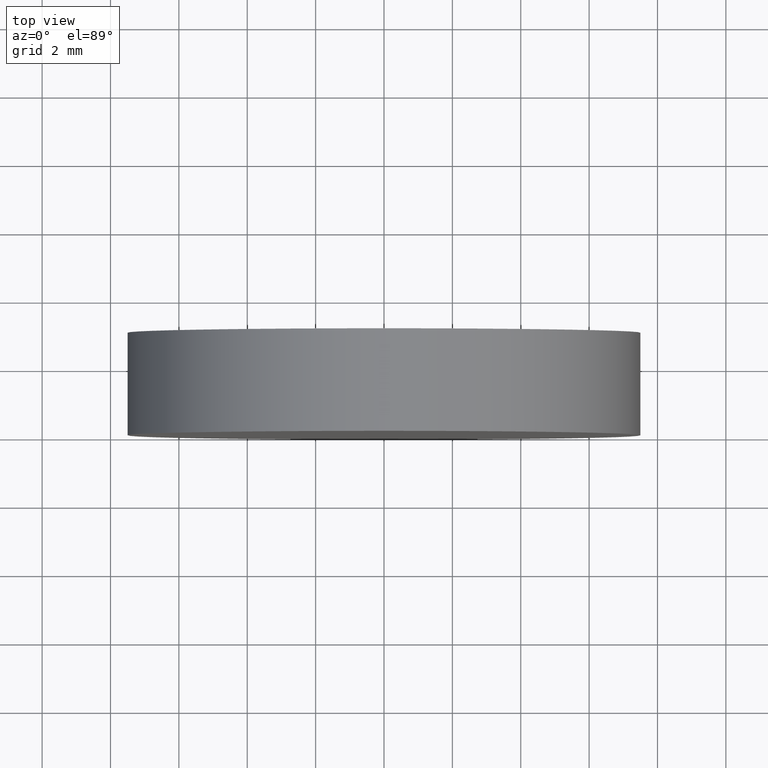
[diagram: clean part render]
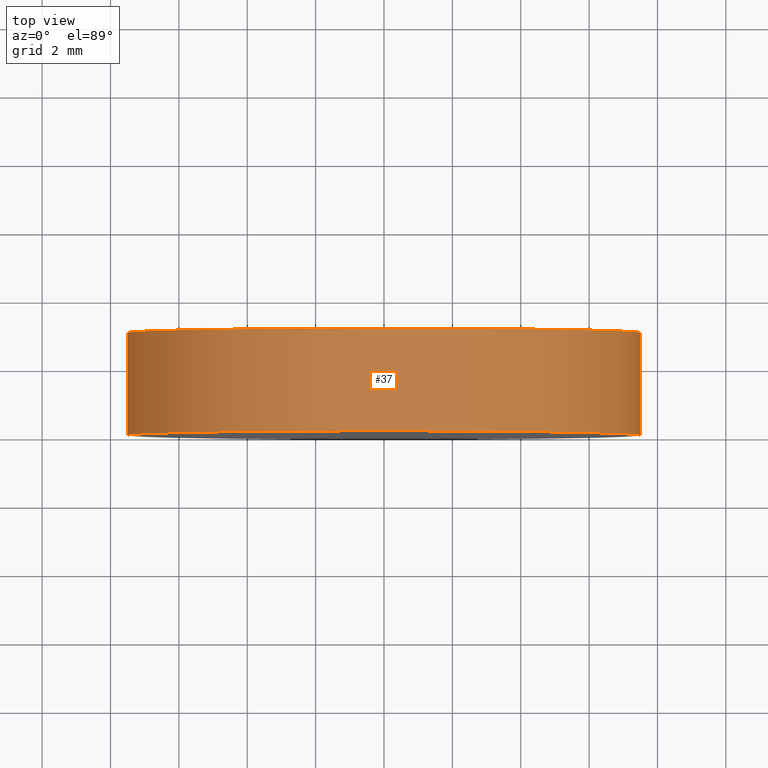
[diagram: same view with one face highlighted and labeled with its STEP entity id]
A machine part, top view. The second image highlights one B-rep face of the part: STEP entity #37.
In plain terms, the highlighted cylindrical surface (bore or boss wall) has radius 7.5 mm, axis along (0, -1, 0).
Its self-contained STEP definition (entity closure, byte-faithful):
#15=FACE_BOUND('',#22,.T.);
#16=CYLINDRICAL_SURFACE('',#43,7.5);
#18=FACE_OUTER_BOUND('',#21,.T.);
#21=EDGE_LOOP('',(#31));
#22=EDGE_LOOP('',(#32));
#24=CIRCLE('',#42,7.5);
#25=CIRCLE('',#44,7.5);
#26=VERTEX_POINT('',#60);
#27=VERTEX_POINT('',#63);
#28=EDGE_CURVE('',#26,#26,#24,.T.);
#29=EDGE_CURVE('',#27,#27,#25,.T.);
#31=ORIENTED_EDGE('',*,*,#28,.T.);
#32=ORIENTED_EDGE('',*,*,#29,.F.);
#37=ADVANCED_FACE('',(#18,#15),#16,.T.);
#42=AXIS2_PLACEMENT_3D('',#61,#50,#51);
#43=AXIS2_PLACEMENT_3D('',#62,#52,#53);
#44=AXIS2_PLACEMENT_3D('',#64,#54,#55);
#50=DIRECTION('center_axis',(1.85037170770859E-16,-1.,0.));
#51=DIRECTION('ref_axis',(1.,1.85037170770859E-16,0.));
#52=DIRECTION('center_axis',(1.85037170770859E-16,-1.,0.));
#53=DIRECTION('ref_axis',(1.,1.70406495116403E-16,0.));
#54=DIRECTION('center_axis',(1.85037170770859E-16,-1.,0.));
#55=DIRECTION('ref_axis',(1.,1.85037170770859E-16,0.));
#60=CARTESIAN_POINT('',(7.5,3.,0.));
#61=CARTESIAN_POINT('Origin',(-5.55111512312578E-16,3.,0.));
#62=CARTESIAN_POINT('Origin',(-2.77555756156289E-16,1.5,0.));
#63=CARTESIAN_POINT('',(7.5,0.,0.));
#64=CARTESIAN_POINT('Origin',(2.77333911991762E-31,-1.38777878078145E-15,
0.));